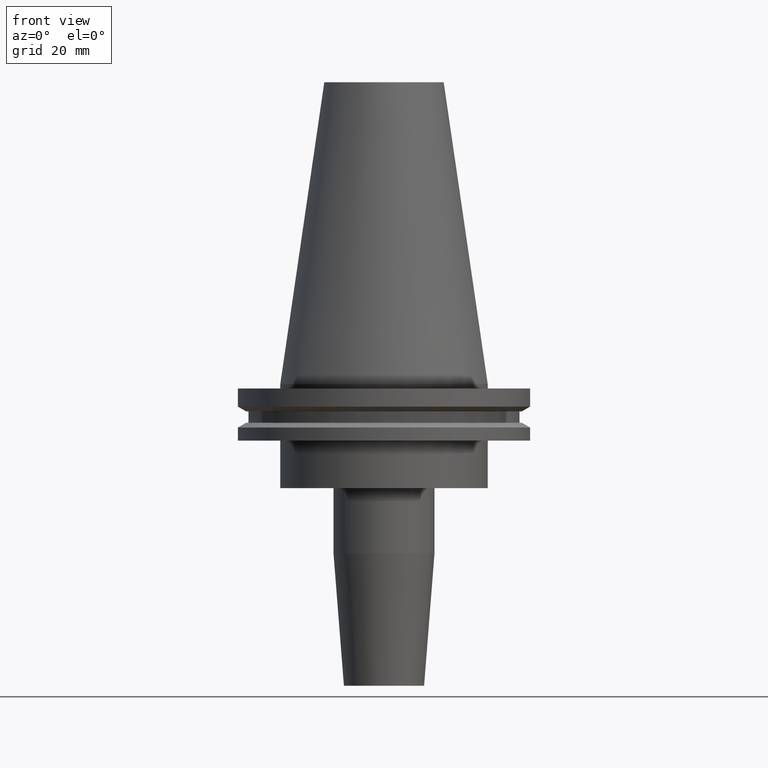
[diagram: clean part render]
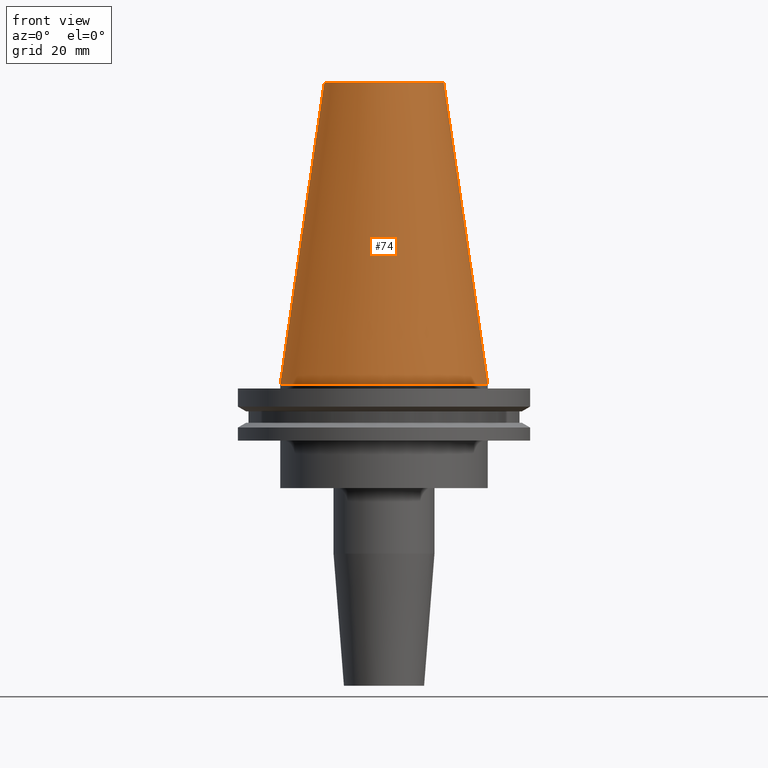
[diagram: same view with one face highlighted and labeled with its STEP entity id]
A machine part, front view. The second image highlights one B-rep face of the part: STEP entity #74.
In plain terms, the highlighted conical surface has half-angle 8.297 deg.
Its self-contained STEP definition (entity closure, byte-faithful):
#2 = DIRECTION ( 'NONE',  ( 1.000000000000000000, 0.000000000000000000, 0.000000000000000000 ) ) ;
#9 = LINE ( 'NONE', #273, #349 ) ;
#16 = FACE_OUTER_BOUND ( 'NONE', #140, .T. ) ;
#50 = LINE ( 'NONE', #190, #536 ) ;
#69 = CIRCLE ( 'NONE', #563, 34.92499999999999005 ) ;
#74 = ADVANCED_FACE ( 'NONE', ( #16 ), #402, .T. ) ;
#85 = DIRECTION ( 'NONE',  ( -1.000000000000000000, 0.000000000000000000, 0.000000000000000000 ) ) ;
#119 = EDGE_CURVE ( 'NONE', #794, #178, #617, .T. ) ;
#139 = ORIENTED_EDGE ( 'NONE', *, *, #398, .T. ) ;
#140 = EDGE_LOOP ( 'NONE', ( #587, #847, #139, #263 ) ) ;
#178 = VERTEX_POINT ( 'NONE', #354 ) ;
#190 = CARTESIAN_POINT ( 'NONE',  ( 34.92499999999999005, 4.277078946022130098E-15, 0.000000000000000000 ) ) ;
#200 = CARTESIAN_POINT ( 'NONE',  ( -34.92499999999999005, 0.000000000000000000, 0.000000000000000000 ) ) ;
#212 = VERTEX_POINT ( 'NONE', #502 ) ;
#229 = DIRECTION ( 'NONE',  ( 0.000000000000000000, 0.000000000000000000, -1.000000000000000000 ) ) ;
#261 = DIRECTION ( 'NONE',  ( 0.1443082272672999988, 1.767266086135277066E-17, -0.9895327864921755756 ) ) ;
#263 = ORIENTED_EDGE ( 'NONE', *, *, #429, .T. ) ;
#267 = EDGE_CURVE ( 'NONE', #178, #212, #50, .T. ) ;
#273 = CARTESIAN_POINT ( 'NONE',  ( -34.92499999999999005, 0.000000000000000000, 0.000000000000000000 ) ) ;
#297 = CARTESIAN_POINT ( 'NONE',  ( 0.000000000000000000, 0.000000000000000000, 101.5999999999999801 ) ) ;
#349 = VECTOR ( 'NONE', #535, 999.9999999999998863 ) ;
#354 = CARTESIAN_POINT ( 'NONE',  ( 20.10819343178871321, 3.369811209154858606E-15, 101.5999999999999801 ) ) ;
#398 = EDGE_CURVE ( 'NONE', #794, #848, #9, .T. ) ;
#402 = CONICAL_SURFACE ( 'NONE', #841, 34.92499999999999005, 0.1448138465474119452 ) ;
#424 = CARTESIAN_POINT ( 'NONE',  ( 0.000000000000000000, 0.000000000000000000, 0.000000000000000000 ) ) ;
#428 = DIRECTION ( 'NONE',  ( -0.000000000000000000, -0.000000000000000000, 1.000000000000000000 ) ) ;
#429 = EDGE_CURVE ( 'NONE', #848, #212, #69, .T. ) ;
#500 = AXIS2_PLACEMENT_3D ( 'NONE', #297, #428, #560 ) ;
#502 = CARTESIAN_POINT ( 'NONE',  ( 34.92499999999999005, 4.277078946022130098E-15, 0.000000000000000000 ) ) ;
#528 = CARTESIAN_POINT ( 'NONE',  ( 0.000000000000000000, 0.000000000000000000, 0.000000000000000000 ) ) ;
#535 = DIRECTION ( 'NONE',  ( -0.1443082272672999988, 0.000000000000000000, -0.9895327864921755756 ) ) ;
#536 = VECTOR ( 'NONE', #261, 999.9999999999998863 ) ;
#560 = DIRECTION ( 'NONE',  ( 1.000000000000000000, 0.000000000000000000, 0.000000000000000000 ) ) ;
#563 = AXIS2_PLACEMENT_3D ( 'NONE', #528, #806, #2 ) ;
#587 = ORIENTED_EDGE ( 'NONE', *, *, #267, .F. ) ;
#617 = CIRCLE ( 'NONE', #500, 20.10819343178871321 ) ;
#794 = VERTEX_POINT ( 'NONE', #849 ) ;
#806 = DIRECTION ( 'NONE',  ( -0.000000000000000000, -0.000000000000000000, 1.000000000000000000 ) ) ;
#841 = AXIS2_PLACEMENT_3D ( 'NONE', #424, #229, #85 ) ;
#847 = ORIENTED_EDGE ( 'NONE', *, *, #119, .F. ) ;
#848 = VERTEX_POINT ( 'NONE', #200 ) ;
#849 = CARTESIAN_POINT ( 'NONE',  ( -20.10819343178871321, 0.000000000000000000, 101.5999999999999801 ) ) ;